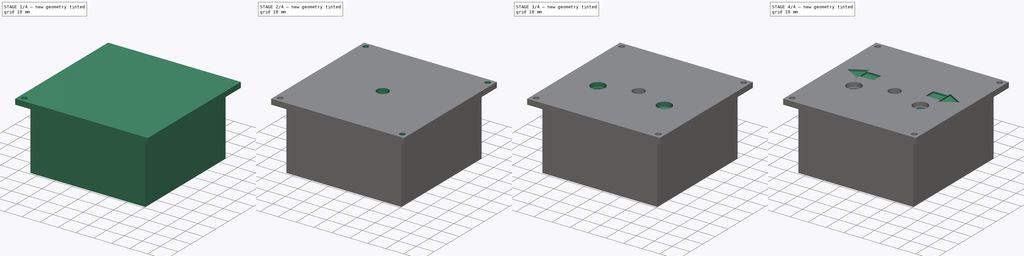
[diagram: build sequence overview — one tinted view per stage of 4, left to right]
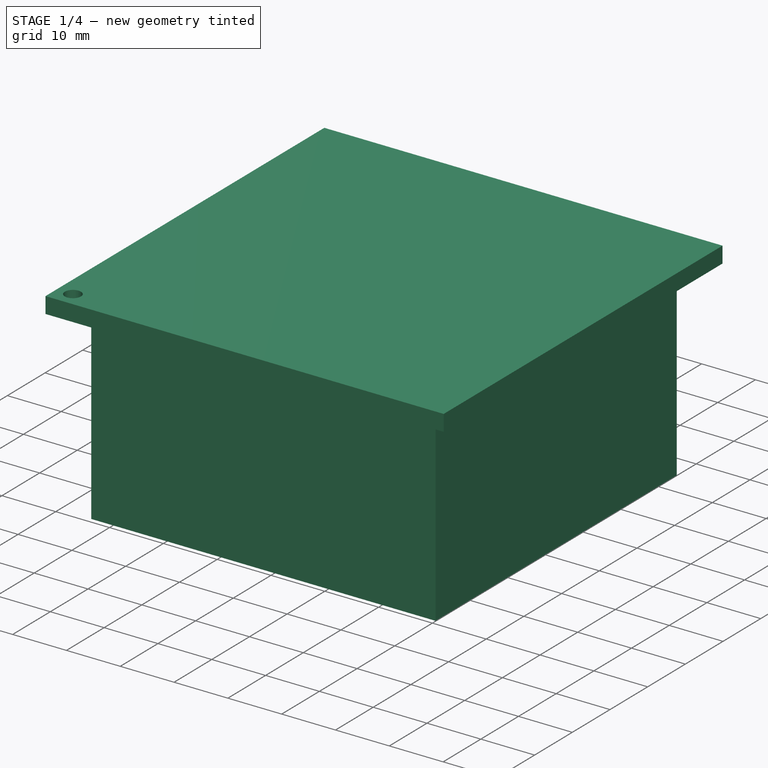
[diagram: stage 1 of 4 — iso view after this stage's code; geometry added in this stage tinted green]
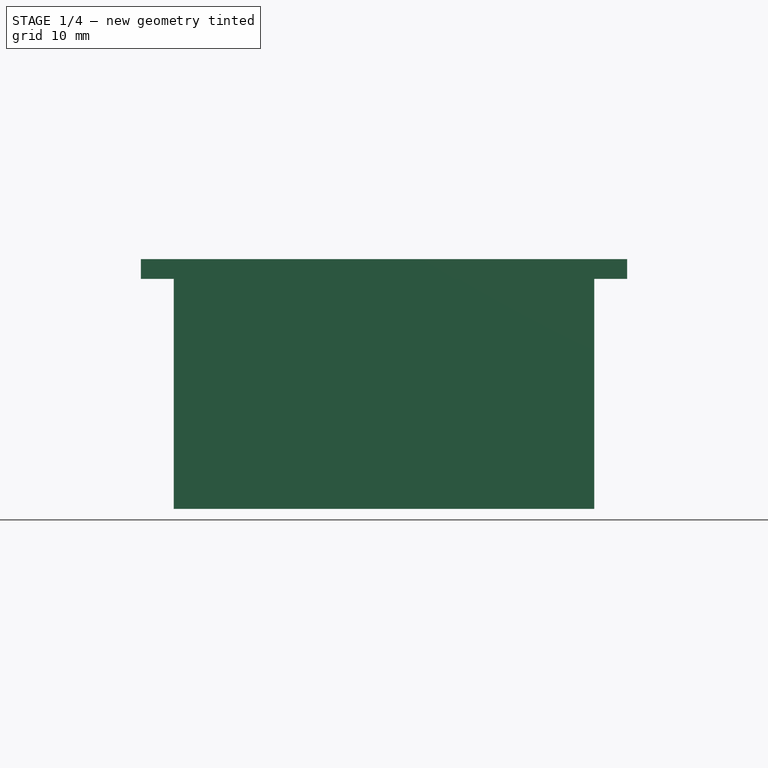
[diagram: stage 1 of 4 — front view after this stage's code; geometry added in this stage tinted green]
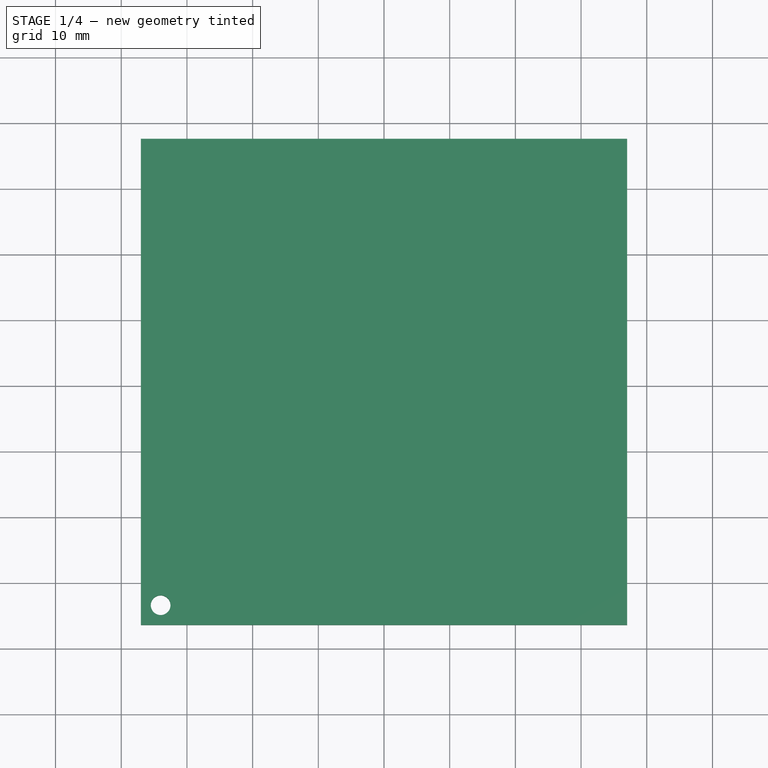
[diagram: stage 1 of 4 — top view after this stage's code; geometry added in this stage tinted green]
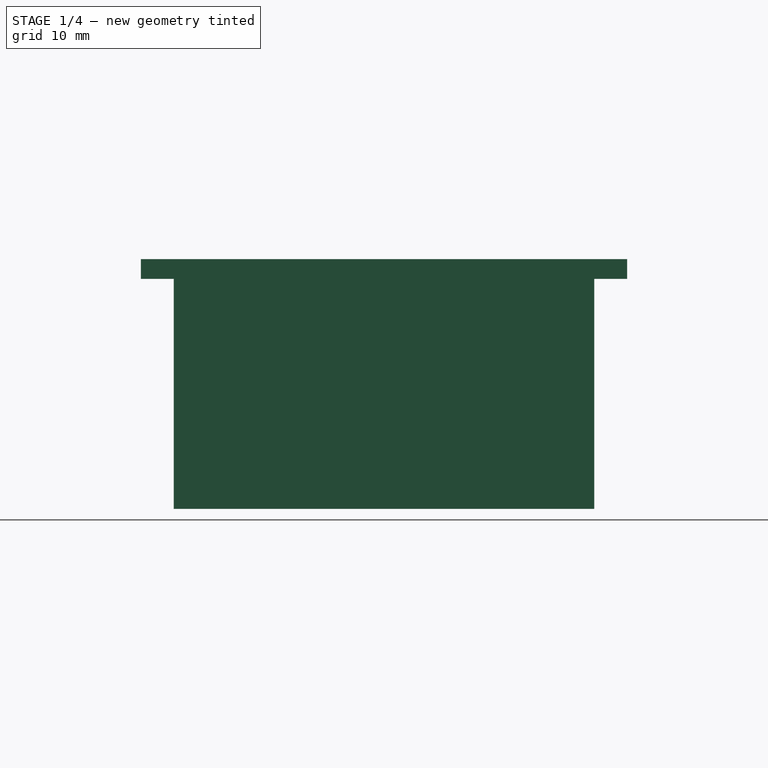
[diagram: stage 1 of 4 — right view after this stage's code; geometry added in this stage tinted green]
FCSTD DOCUMENT  (FreeCAD 0.20R29603 (Git))
Label: module-7
License: All rights reserved
LicenseURL: http://en.wikipedia.org/wiki/All_rights_reserved
objects: Sketcher::SketchObject×12, PartDesign::Pocket×7, PartDesign::Pad×5, PartDesign::Mirrored×3, PartDesign::MultiTransform×2, PartDesign::Body×1
note: 42 computed .brp shape members not serialized (recipe doc carries the construction recipe); baked Part::Feature solids carry a one-line shape summary decoded from their .brp

FEATURE [Sketcher::SketchObject] Sketch  label="FrontPanelBase"
  FullyConstrained = true
  MapMode = 5
  Support = -> [XY_Plane001]
  sketch-geometry (4):
    g0: LineSegment StartX=-37 StartY=37 StartZ=0 EndX=37 EndY=37 EndZ=0
    g1: LineSegment StartX=37 StartY=37 StartZ=0 EndX=37 EndY=-37 EndZ=0
    g2: LineSegment StartX=37 StartY=-37 StartZ=0 EndX=-37 EndY=-37 EndZ=0
    g3: LineSegment StartX=-37 StartY=-37 StartZ=0 EndX=-37 EndY=37 EndZ=0
  constraints (10):
    c: Coincident(g0,g1)
    c: Coincident(g1,g2)
    c: Coincident(g2,g3)
    c: Coincident(g3,g0)
    c: DistanceX(g0,g0) = 74
    c: DistanceY(g3,g3) = 74
    c: Vertical(g1)
    c: Horizontal(g2)
    c: Symmetric(g0,g0,g-2)
    c: Symmetric(g0,g2,g-1)
FEATURE [PartDesign::Pad] Pad  label="FrontPanelPad"
  Direction = (0,0,1)
  Length = 3
  Length2 = 10
  Profile = -> Sketch
  ReferenceAxis = -> Sketch [N_Axis]
  Type = 0
FEATURE [Sketcher::SketchObject] Sketch002  label="InnerWall"
  FullyConstrained = true
  MapMode = 5
  Placement = pos=(0,0,0) rot=(1,0,0;3.14159rad)
  Support = -> [Pad]
  sketch-geometry (12):
    g0: LineSegment StartX=-30 StartY=30 StartZ=0 EndX=30 EndY=30 EndZ=0
    g1: LineSegment StartX=30 StartY=30 StartZ=0 EndX=30 EndY=-30 EndZ=0
    g2: LineSegment StartX=30 StartY=-30 StartZ=0 EndX=-30 EndY=-30 EndZ=0
    g3: LineSegment StartX=-30 StartY=-30 StartZ=0 EndX=-30 EndY=30 EndZ=0
    g4: LineSegment StartX=-32 StartY=32 StartZ=0 EndX=32 EndY=32 EndZ=0
    g5: LineSegment StartX=32 StartY=32 StartZ=0 EndX=32 EndY=-32 EndZ=0
    g6: LineSegment StartX=32 StartY=-32 StartZ=0 EndX=-32 EndY=-32 EndZ=0
    g7: LineSegment StartX=-32 StartY=-32 StartZ=0 EndX=-32 EndY=32 EndZ=0
    g8: GeomPoint X=-30 Y=32 Z=0
    g9: GeomPoint X=-30 Y=-32 Z=0
    g10: GeomPoint X=-32 Y=-30 Z=0
    g11: GeomPoint X=32 Y=-30 Z=0
  constraints (31):
    c: Coincident(g0,g1)
    c: Coincident(g1,g2)
    c: Coincident(g2,g3)
    c: Coincident(g3,g0)
    c: Horizontal(g0)
    c: Horizontal(g2)
    c: Vertical(g1)
    c: Vertical(g3)
    c: DistanceX(g0,g0) = 60
    c: DistanceY(g2,g0) = 60
    c: Symmetric(g0,g1,g-1)
    c: Coincident(g4,g5)
    c: Coincident(g5,g6)
    c: Coincident(g6,g7)
    c: Coincident(g7,g4)
    c: Horizontal(g4)
    c: Horizontal(g6)
    c: Vertical(g5)
    c: Vertical(g7)
    c: PointOnObject(g8,g4)
    c: DistanceX(g0,g8) = 0
    c: DistanceY(g0,g8) = 2
    c: PointOnObject(g9,g6)
    c: DistanceX(g2,g9) = 0
    c: DistanceY(g9,g2) = 2
    c: PointOnObject(g10,g7)
    c: DistanceY(g2,g10) = 0
    c: DistanceX(g10,g2) = 2
    c: PointOnObject(g11,g5)
    c: DistanceY(g1,g11) = 0
    c: DistanceX(g1,g11) = 2
FEATURE [PartDesign::Pad] Pad001  label="InnerWallPad"
  BaseFeature = -> Pad
  Direction = (0,0,-1)
  Length = 35
  Length2 = 10
  Profile = -> Sketch002
  ReferenceAxis = -> Sketch002 [N_Axis]
  Type = 0
FEATURE [Sketcher::SketchObject] Sketch003  label="FrontPanelHoles"
  ExternalGeometry = -> [Pad001]
  FullyConstrained = true
  MapMode = 5
  Placement = pos=(0,0,0) rot=(1,0,0;3.14159rad)
  Support = -> [Pad001]
  sketch-geometry (3):
    g0: Circle CenterX=-34 CenterY=34 CenterZ=0 NormalX=0 NormalY=0 NormalZ=1 AngleXU=0 Radius=1.5
    g1: GeomPoint X=-37 Y=34 Z=0
    g2: GeomPoint X=-34 Y=37 Z=0
  constraints (7):
    c: Diameter(g0) = 3
    c: PointOnObject(g1,g-3)
    c: PointOnObject(g2,g-4)
    c: DistanceY(g1,g-4) = 3
    c: DistanceX(g-4,g2) = 3
    c: DistanceY(g0,g1) = 0
    c: DistanceX(g0,g2) = 0
FEATURE [PartDesign::Pocket] Pocket  label="FrontPanelPocket"
  BaseFeature = -> Pad001
  Direction = (0,0,1)
  Length = 5
  Length2 = 5
  Profile = -> Sketch003
  ReferenceAxis = -> Sketch003 [N_Axis]
  Type = 1
FEATURE [Sketcher::SketchObject] Sketch004  label="LidSupport"
  ExternalGeometry = -> [Pocket]
  FullyConstrained = true
  MapMode = 5
  Placement = pos=(0,0,0) rot=(1,0,0;3.14159rad)
  Support = -> [Pocket]
  sketch-geometry (3):
    g0: ArcOfCircle CenterX=-30 CenterY=30 CenterZ=0 NormalX=0 NormalY=0 NormalZ=1 AngleXU=0 Radius=8 StartAngle=4.71239 EndAngle=6.28319
    g1: LineSegment StartX=-30 StartY=30 StartZ=0 EndX=-30 EndY=22 EndZ=0
    g2: LineSegment StartX=-30 StartY=30 StartZ=0 EndX=-22 EndY=30 EndZ=0
  constraints (8):
    c: Coincident(g0,g-4)
    c: PointOnObject(g0,g-4)
    c: PointOnObject(g0,g-3)
    c: Radius(g0) = 8
    c: Coincident(g1,g0)
    c: Coincident(g1,g0)
    c: Coincident(g2,g0)
    c: Coincident(g2,g0)
FEATURE [PartDesign::Pad] Pad002  label="LidSupportPad"
  BaseFeature = -> Pocket
  Direction = (0,0,-1)
  Length = 32
  Length2 = 10
  Profile = -> Sketch004
  ReferenceAxis = -> Sketch004 [N_Axis]
  Type = 0
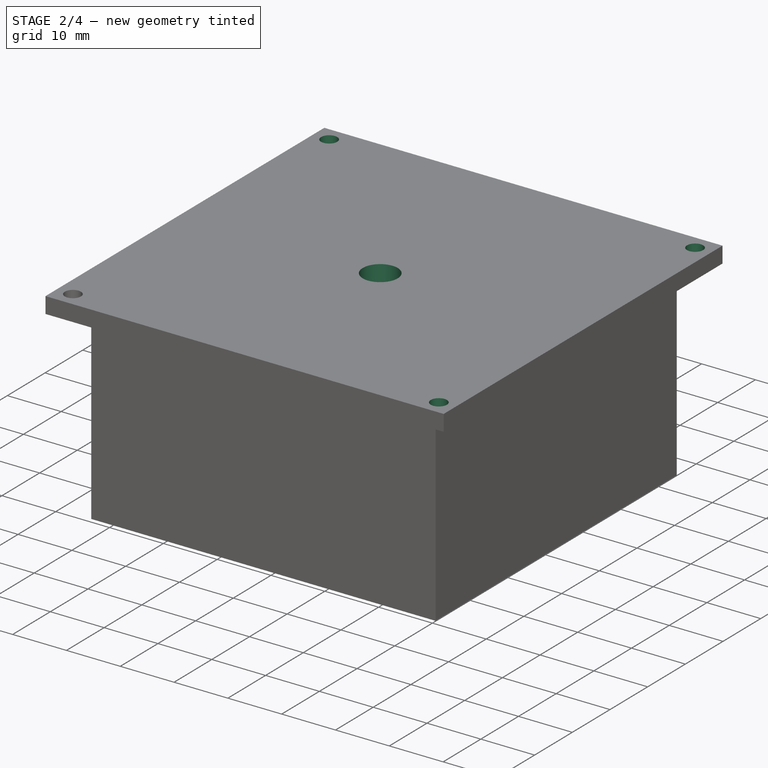
[diagram: stage 2 of 4 — iso view after this stage's code; geometry added in this stage tinted green]
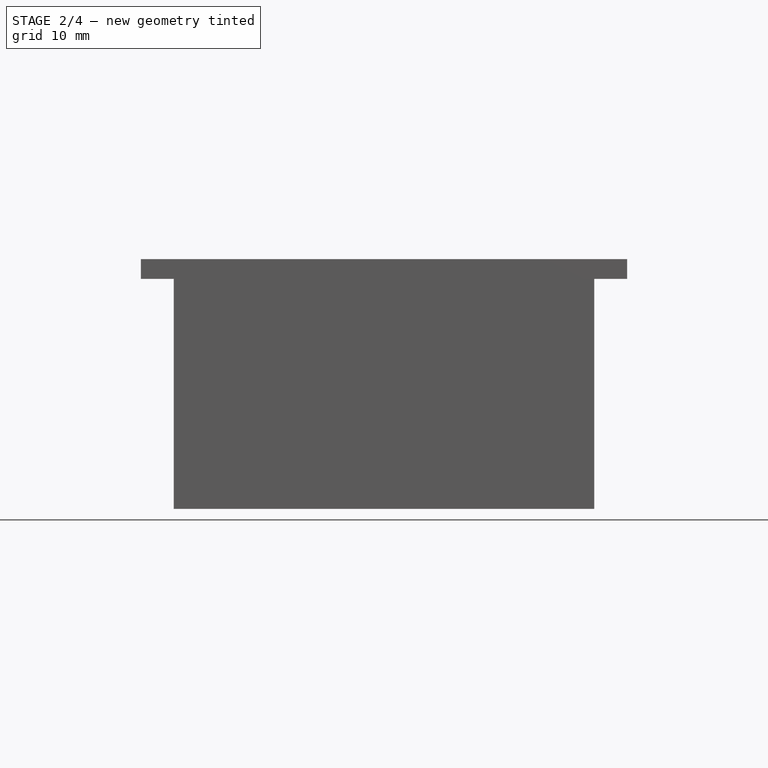
[diagram: stage 2 of 4 — front view after this stage's code; geometry added in this stage tinted green]
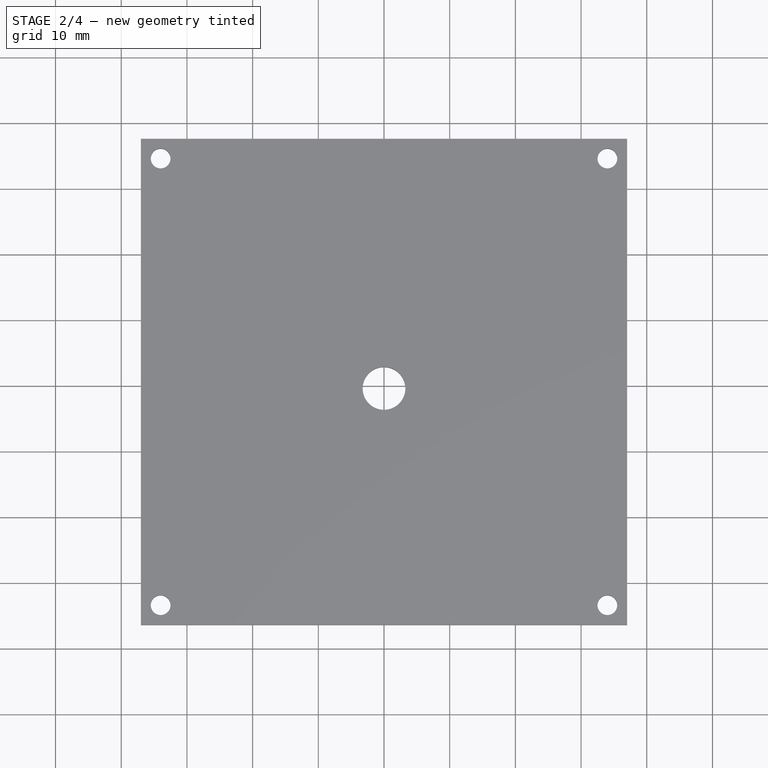
[diagram: stage 2 of 4 — top view after this stage's code; geometry added in this stage tinted green]
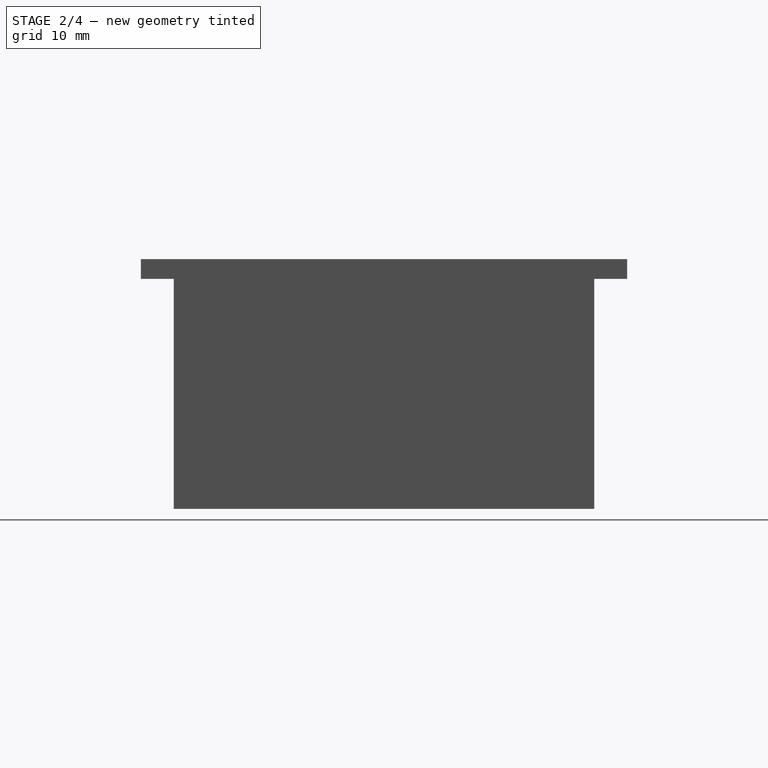
[diagram: stage 2 of 4 — right view after this stage's code; geometry added in this stage tinted green]
FEATURE [Sketcher::SketchObject] Sketch005  label="LidHole"
  ExternalGeometry = -> [Pad002]
  FullyConstrained = true
  MapMode = 5
  Placement = pos=(0,0,-32) rot=(1,0,0;3.14159rad)
  Support = -> [Pad002]
  sketch-geometry (3):
    g0: Circle CenterX=-27 CenterY=27 CenterZ=0 NormalX=0 NormalY=0 NormalZ=1 AngleXU=0 Radius=2.4
    g1: GeomPoint X=-30 Y=27 Z=0
    g2: GeomPoint X=-27 Y=30 Z=0
  constraints (7):
    c: Diameter(g0) = 4.8
    c: PointOnObject(g1,g-3)
    c: PointOnObject(g2,g-4)
    c: DistanceX(g-4,g2) = 3
    c: DistanceY(g1,g-4) = 3
    c: DistanceY(g1,g0) = 0
    c: DistanceX(g0,g2) = 0
FEATURE [PartDesign::Pocket] Pocket001  label="LidHolePocket"
  BaseFeature = -> Pad002
  Direction = (0,0,1)
  Length = 10
  Length2 = 5
  Profile = -> Sketch005
  ReferenceAxis = -> Sketch005 [N_Axis]
  Type = 0
FEATURE [PartDesign::Mirrored] Mirrored
  MirrorPlane = -> Sketch003 [V_Axis]
FEATURE [PartDesign::Mirrored] Mirrored001
  MirrorPlane = -> Sketch003 [H_Axis]
FEATURE [PartDesign::MultiTransform] MultiTransform
  BaseFeature = -> Pocket001
  Originals = -> [Pocket,Pad002,Pocket001]
  Transformations = -> [Mirrored,Mirrored001]
FEATURE [Sketcher::SketchObject] Sketch006
  FullyConstrained = true
  MapMode = 5
  Placement = pos=(0,0,3) rot=(0,0,1;0rad)
  Support = -> [MultiTransform]
  sketch-geometry (1):
    g0: Circle CenterX=0 CenterY=-1 CenterZ=0 NormalX=0 NormalY=0 NormalZ=1 AngleXU=0 Radius=3.25
  constraints (3):
    c: Diameter(g0) = 6.5
    c: Vertical(g0,g-1)
    c: DistanceY(g0,g-1) = 1
FEATURE [PartDesign::Pocket] Pocket002
  BaseFeature = -> MultiTransform
  Direction = (0,0,-1)
  Length = 5
  Length2 = 5
  Profile = -> Sketch006
  ReferenceAxis = -> Sketch006 [N_Axis]
  Type = 1
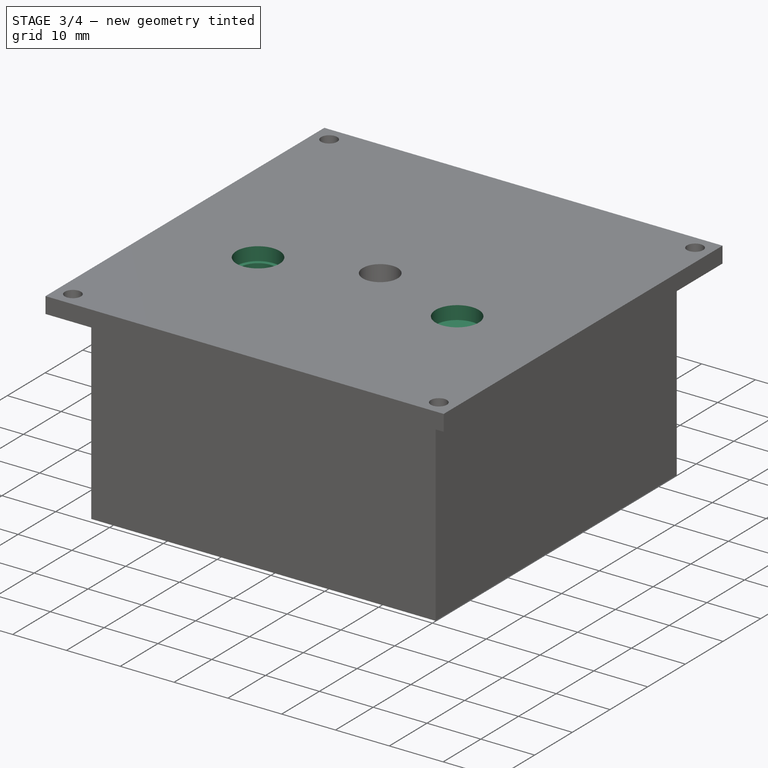
[diagram: stage 3 of 4 — iso view after this stage's code; geometry added in this stage tinted green]
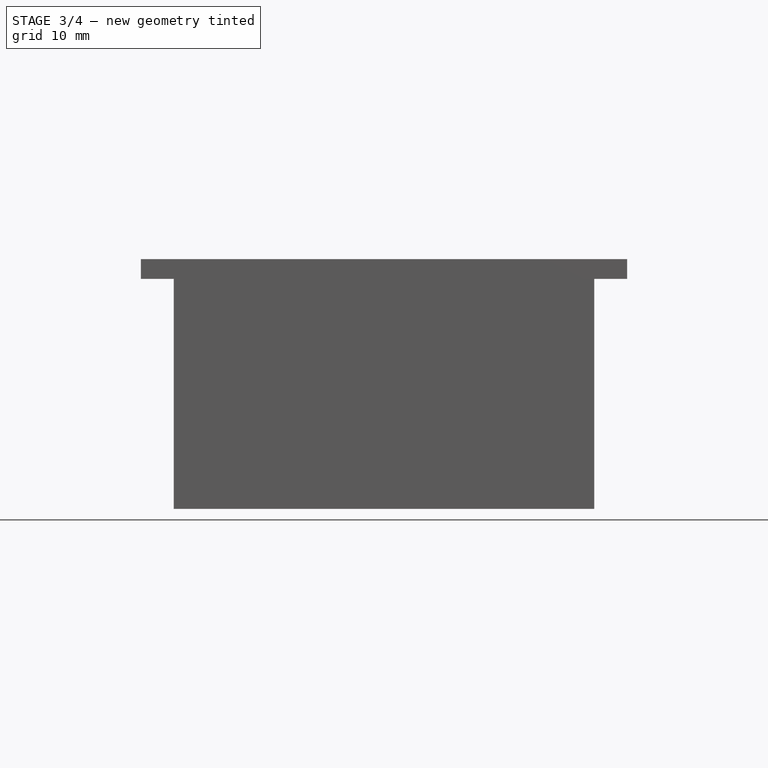
[diagram: stage 3 of 4 — front view after this stage's code; geometry added in this stage tinted green]
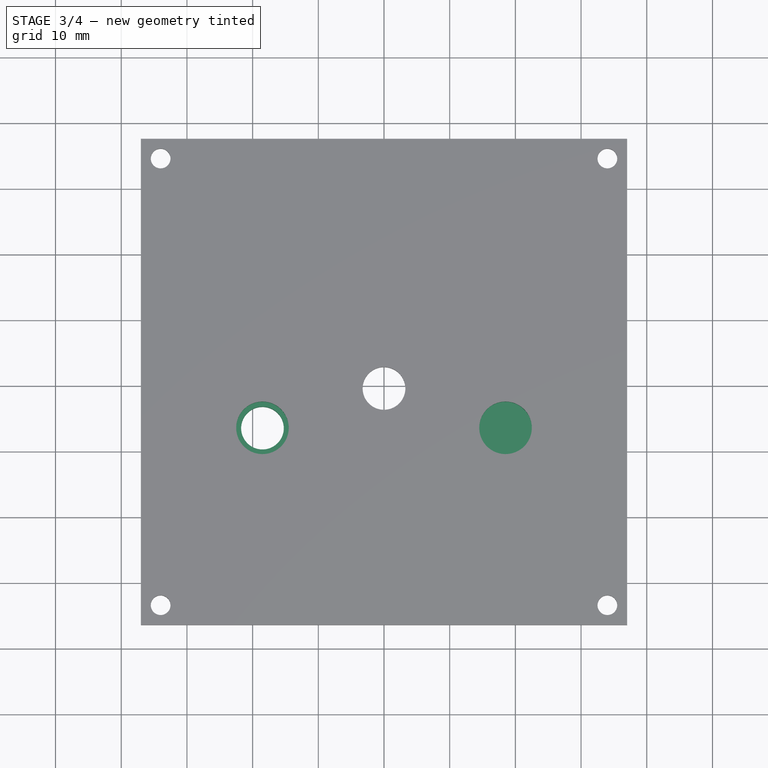
[diagram: stage 3 of 4 — top view after this stage's code; geometry added in this stage tinted green]
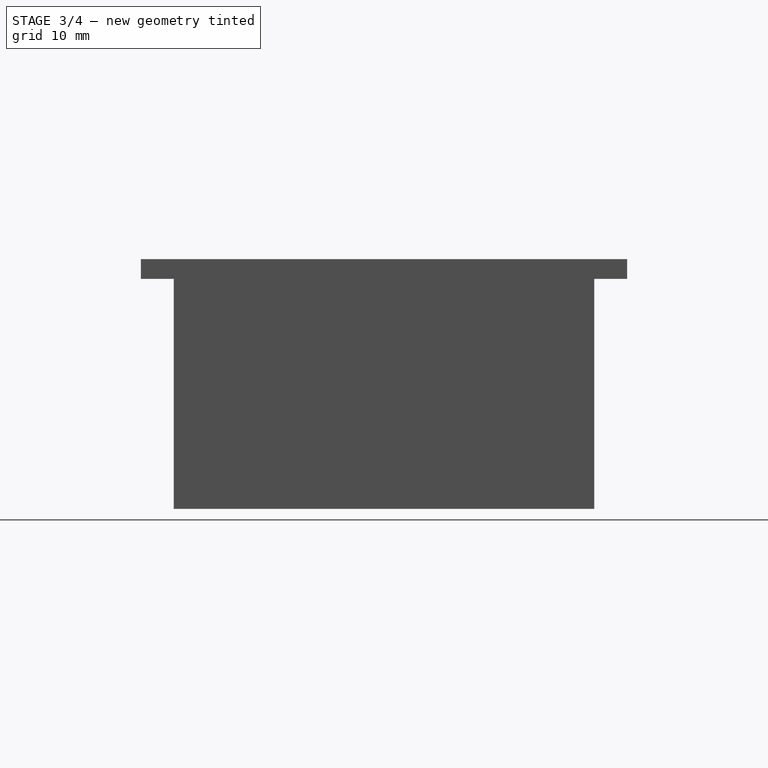
[diagram: stage 3 of 4 — right view after this stage's code; geometry added in this stage tinted green]
FEATURE [Sketcher::SketchObject] Sketch008
  ExternalGeometry = -> [Pocket002]
  FullyConstrained = true
  MapMode = 5
  Placement = pos=(0,0,3) rot=(0,0,1;0rad)
  Support = -> [Pocket002]
  sketch-geometry (4):
    g0: Circle CenterX=-18.5 CenterY=-7 CenterZ=0 NormalX=0 NormalY=0 NormalZ=1 AngleXU=0 Radius=4
    g1: Circle CenterX=18.5 CenterY=-7 CenterZ=0 NormalX=0 NormalY=0 NormalZ=1 AngleXU=0 Radius=4
    g2: GeomPoint X=-37 Y=-14 Z=0
    g3: GeomPoint X=37 Y=-14 Z=0
  constraints (8):
    c: Diameter(g0) = 8
    c: Equal(g0,g1)
    c: PointOnObject(g2,g-3)
    c: Symmetric(g-1,g2,g0)
    c: PointOnObject(g3,g-4)
    c: Symmetric(g-1,g3,g1)
    c: DistanceY(g0,g-1) = 7
    c: DistanceY(g1,g-1) = 7
FEATURE [PartDesign::Pocket] Pocket003
  BaseFeature = -> Pocket002
  Direction = (0,0,-1)
  Length = 2.5
  Length2 = 5
  Profile = -> Sketch008
  ReferenceAxis = -> Sketch008 [N_Axis]
  Type = 0
FEATURE [Sketcher::SketchObject] Sketch009
  ExternalGeometry = -> [Pocket003]
  FullyConstrained = true
  MapMode = 5
  Placement = pos=(0,0,0) rot=(1,0,0;3.14159rad)
  Support = -> [Pocket003]
  sketch-geometry (2):
    g0: Circle CenterX=18.5 CenterY=7 CenterZ=0 NormalX=0 NormalY=0 NormalZ=1 AngleXU=0 Radius=6
    g1: Circle CenterX=-18.5 CenterY=7 CenterZ=0 NormalX=0 NormalY=0 NormalZ=1 AngleXU=0 Radius=6
  constraints (4):
    c: Diameter(g0) = 12
    c: Equal(g0,g1)
    c: Coincident(g1,g-3)
    c: Coincident(g0,g-4)
FEATURE [PartDesign::Pad] Pad003
  BaseFeature = -> Pocket003
  Direction = (0,0,-1)
  Length = 3
  Length2 = 10
  Profile = -> Sketch009
  ReferenceAxis = -> Sketch009 [N_Axis]
  Type = 0
FEATURE [Sketcher::SketchObject] Sketch010
  ExternalGeometry = -> [Pad003]
  FullyConstrained = true
  MapMode = 5
  Placement = pos=(0,0,-3) rot=(1,0,0;3.14159rad)
  Support = -> [Pad003]
  sketch-geometry (1):
    g0: Circle CenterX=-18.5 CenterY=7 CenterZ=0 NormalX=0 NormalY=0 NormalZ=1 AngleXU=0 Radius=3.25
  constraints (2):
    c: Diameter(g0) = 6.5
    c: Coincident(g0,g-3)
FEATURE [PartDesign::Pocket] Pocket004
  BaseFeature = -> Pad003
  Direction = (0,0,1)
  Length = 5
  Length2 = 5
  Profile = -> Sketch010
  ReferenceAxis = -> Sketch010 [N_Axis]
  Type = 1
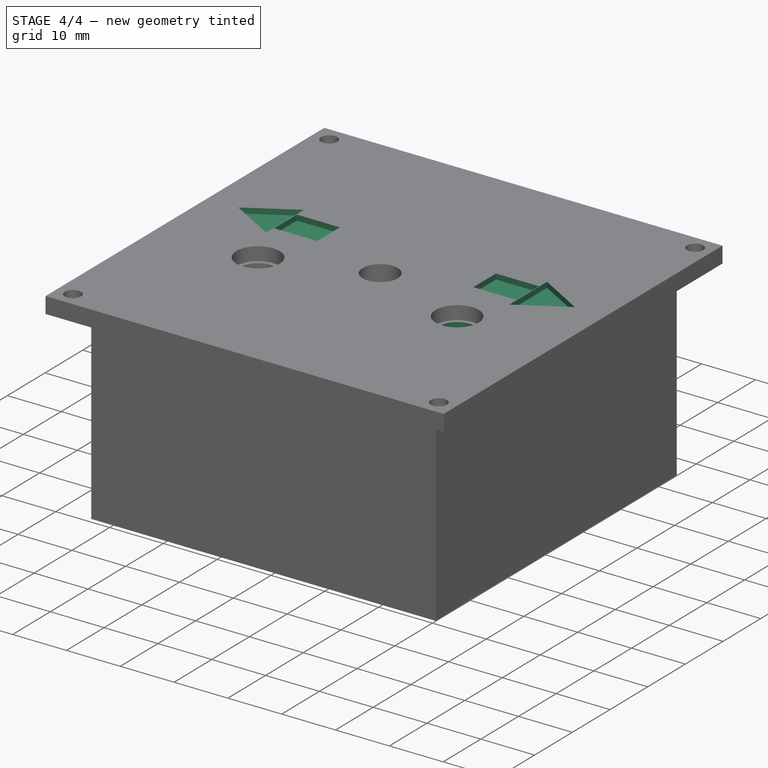
[diagram: stage 4 of 4 — iso view after this stage's code; geometry added in this stage tinted green]
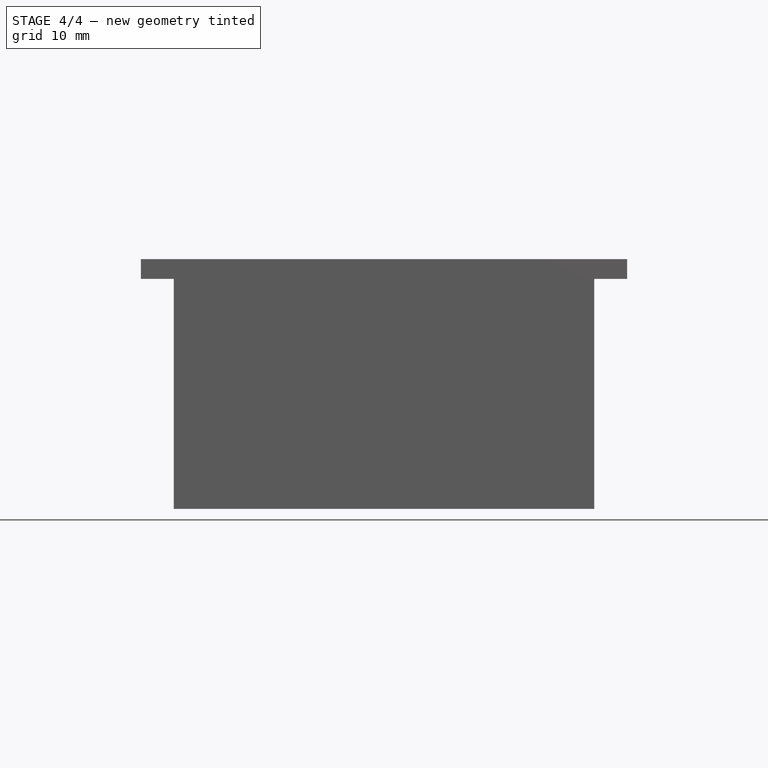
[diagram: stage 4 of 4 — front view after this stage's code; geometry added in this stage tinted green]
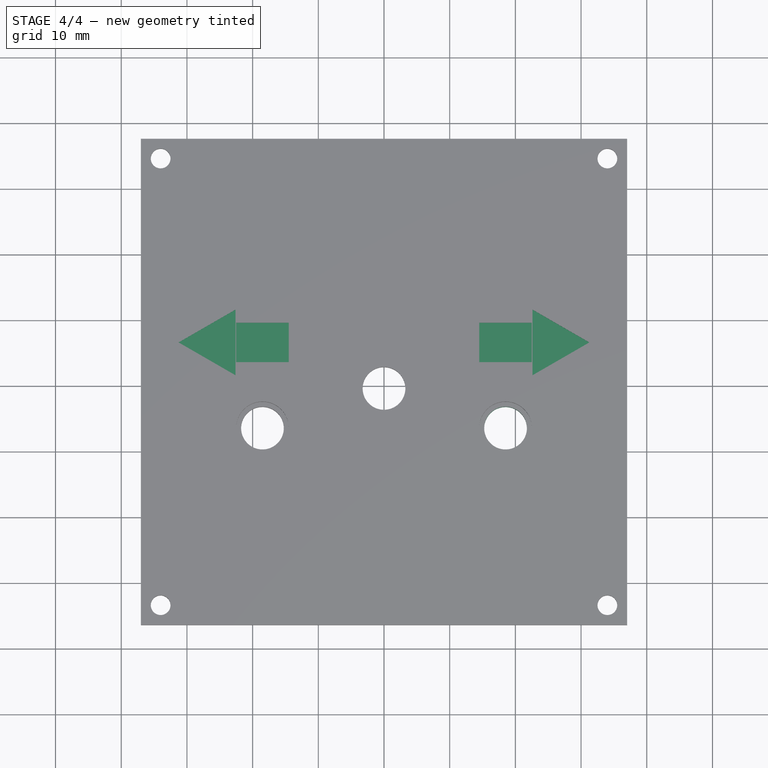
[diagram: stage 4 of 4 — top view after this stage's code; geometry added in this stage tinted green]
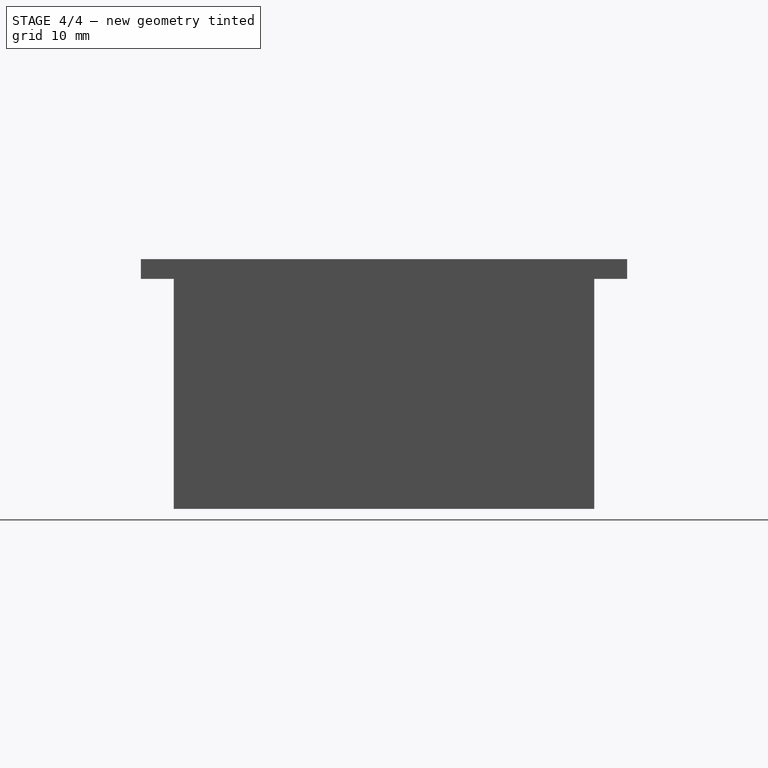
[diagram: stage 4 of 4 — right view after this stage's code; geometry added in this stage tinted green]
FEATURE [Sketcher::SketchObject] Sketch011
  ExternalGeometry = -> [Pocket004]
  FullyConstrained = true
  MapMode = 5
  Placement = pos=(0,0,3) rot=(0,0,1;0rad)
  Support = -> [Pocket004]
  sketch-geometry (1):
    g0: Circle CenterX=18.5 CenterY=-7 CenterZ=0 NormalX=0 NormalY=0 NormalZ=1 AngleXU=0 Radius=3.25
  constraints (2):
    c: Diameter(g0) = 6.5
    c: Coincident(g0,g-3)
FEATURE [PartDesign::Pocket] Pocket005
  BaseFeature = -> Pocket004
  Direction = (0,0,-1)
  Length = 5
  Length2 = 5
  Profile = -> Sketch011
  ReferenceAxis = -> Sketch011 [N_Axis]
  Type = 1
FEATURE [Sketcher::SketchObject] Sketch012
  ExternalGeometry = -> [Pocket005]
  FullyConstrained = true
  MapMode = 5
  Placement = pos=(0,0,3) rot=(0,0,1;0rad)
  Support = -> [Pocket005]
  sketch-geometry (10):
    g0: LineSegment StartX=-22.5 StartY=9 StartZ=0 EndX=-14.5 EndY=9 EndZ=0
    g1: LineSegment StartX=-14.5 StartY=9 StartZ=0 EndX=-14.5 EndY=3 EndZ=0
    g2: LineSegment StartX=-14.5 StartY=3 StartZ=0 EndX=-22.5 EndY=3 EndZ=0
    g3: LineSegment StartX=-22.5 StartY=3 StartZ=0 EndX=-22.5 EndY=9 EndZ=0
    g4: GeomPoint X=-22.5 Y=-7 Z=0
    g5: LineSegment StartX=-22.6 StartY=1 StartZ=0 EndX=-22.6 EndY=11 EndZ=0
    g6: LineSegment StartX=-22.6 StartY=11 StartZ=0 EndX=-31.2603 EndY=6 EndZ=0
    g7: LineSegment StartX=-31.2603 StartY=6 StartZ=0 EndX=-22.6 EndY=1 EndZ=0
    g8: Circle CenterX=-25.4868 CenterY=6 CenterZ=0 NormalX=0 NormalY=0 NormalZ=1 AngleXU=0 Radius=5.7735
    g9: GeomPoint X=-22.5 Y=6 Z=0
  constraints (27):
    c: Coincident(g0,g1)
    c: Coincident(g1,g2)
    c: Coincident(g2,g3)
    c: Coincident(g3,g0)
    c: Horizontal(g0)
    c: Horizontal(g2)
    c: Vertical(g1)
    c: Vertical(g3)
    c: DistanceX(g2,g1) = 8
    c: DistanceY(g1,g0) = 6
    c: Vertical(g2,g4)
    c: DistanceY(g4,g2) = 10
    c: Coincident(g5,g6)
    c: Coincident(g6,g7)
    c: Coincident(g7,g5)
    c: Equal(g5,g6)
    c: Equal(g5,g7)
    c: PointOnObject(g5,g8)
    c: PointOnObject(g6,g8)
    c: PointOnObject(g7,g8)
    c: Vertical(g5,g5)
    c: Horizontal(g9,g6)
    c: Symmetric(g0,g2,g9)
    c: DistanceY(g5,g5) = 10
    c: DistanceX(g5,g2) = 0.1
    c: PointOnObject(g4,g-3)
    c: Horizontal(g4,g-3)
FEATURE [PartDesign::Pocket] Pocket006
  BaseFeature = -> Pocket005
  Direction = (0,0,-1)
  Length = 1
  Length2 = 5
  Profile = -> Sketch012
  ReferenceAxis = -> Sketch012 [N_Axis]
  Type = 0
FEATURE [PartDesign::Mirrored] Mirrored002
  MirrorPlane = -> Sketch012 [V_Axis]
FEATURE [PartDesign::MultiTransform] MultiTransform001
  BaseFeature = -> Pocket006
  Originals = -> [Pocket006]
  Transformations = -> [Mirrored002]
FEATURE [Sketcher::SketchObject] Sketch013
  ExternalGeometry = -> [MultiTransform001]
  FullyConstrained = true
  MapMode = 5
  Placement = pos=(0,0,0) rot=(1,0,0;3.14159rad)
  Support = -> [MultiTransform001]
  sketch-geometry (8):
    g0: LineSegment StartX=-30 StartY=-17 StartZ=0 EndX=-25 EndY=-17 EndZ=0
    g1: LineSegment StartX=-25 StartY=-17 StartZ=0 EndX=-25 EndY=-22 EndZ=0
    g2: LineSegment StartX=-25 StartY=-22 StartZ=0 EndX=-30 EndY=-22 EndZ=0
    g3: LineSegment StartX=-30 StartY=-22 StartZ=0 EndX=-30 EndY=-17 EndZ=0
    g4: LineSegment StartX=15 StartY=-3.6e-15 StartZ=0 EndX=20 EndY=-3.6e-15 EndZ=0
    g5: LineSegment StartX=20 StartY=-3.6e-15 StartZ=0 EndX=20 EndY=-5 EndZ=0
    g6: LineSegment StartX=20 StartY=-5 StartZ=0 EndX=15 EndY=-5 EndZ=0
    g7: LineSegment StartX=15 StartY=-5 StartZ=0 EndX=15 EndY=-3.6e-15 EndZ=0
  constraints (23):
    c: Coincident(g0,g1)
    c: Coincident(g1,g2)
    c: Coincident(g2,g3)
    c: Coincident(g3,g0)
    c: Horizontal(g0)
    c: Horizontal(g2)
    c: Vertical(g1)
    c: Vertical(g3)
    c: Coincident(g2,g-3)
    c: DistanceY(g1,g0) = 5
    c: DistanceX(g0,g0) = 5
    c: Coincident(g4,g5)
    c: Coincident(g5,g6)
    c: Coincident(g6,g7)
    c: Coincident(g7,g4)
    c: Horizontal(g4)
    c: Horizontal(g6)
    c: Vertical(g5)
    c: Vertical(g7)
    c: DistanceY(g0,g6) = 12
    c: DistanceY(g6,g4) = 5
    c: DistanceX(g4,g4) = 5
    c: DistanceX(g0,g6) = 40
FEATURE [PartDesign::Pad] Pad004
  BaseFeature = -> MultiTransform001
  Direction = (0,0,-1)
  Length = 16
  Length2 = 10
  Profile = -> Sketch013
  ReferenceAxis = -> Sketch013 [N_Axis]
  Type = 0
FEATURE [PartDesign::Body] Body001
  Group = -> [Sketch,Pad,Sketch002,Pad001,Sketch003,Pocket,Sketch004,Pad002,Sketch005,Pocket001,MultiTransform,Mirrored,Mirrored001,Sketch006,Pocket002,Sketch008,Pocket003,Sketch009,Pad003,Sketch010,Pocket004,Sketch011,Pocket005,Sketch012,Pocket006,MultiTransform001,Mirrored002,Sketch013,Pad004]
  Origin = -> Origin001
  Tip = -> Pad004
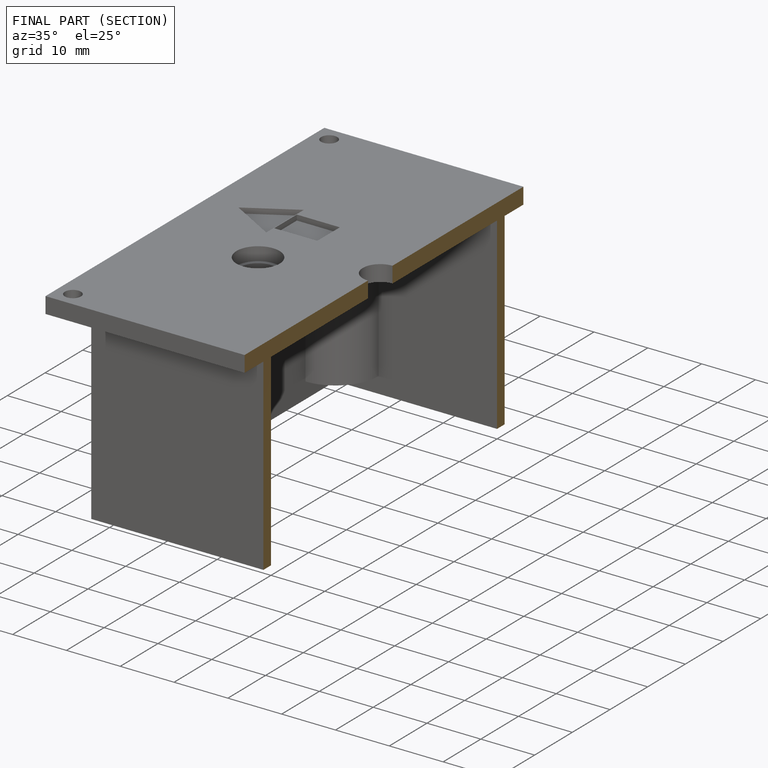
[diagram: finished part — half-section view (interior)]
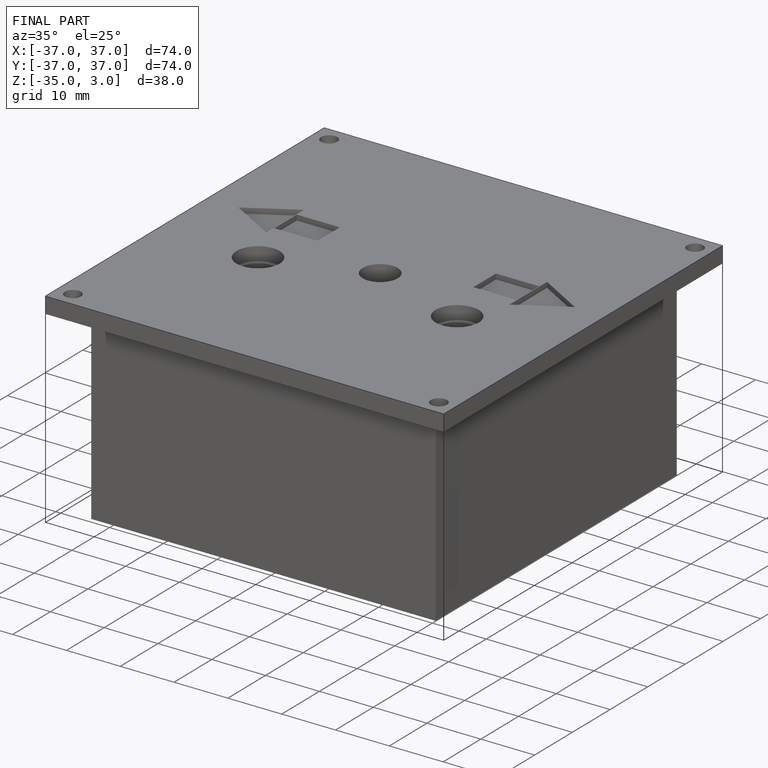
[diagram: finished part — iso view with bounding-box wireframe]
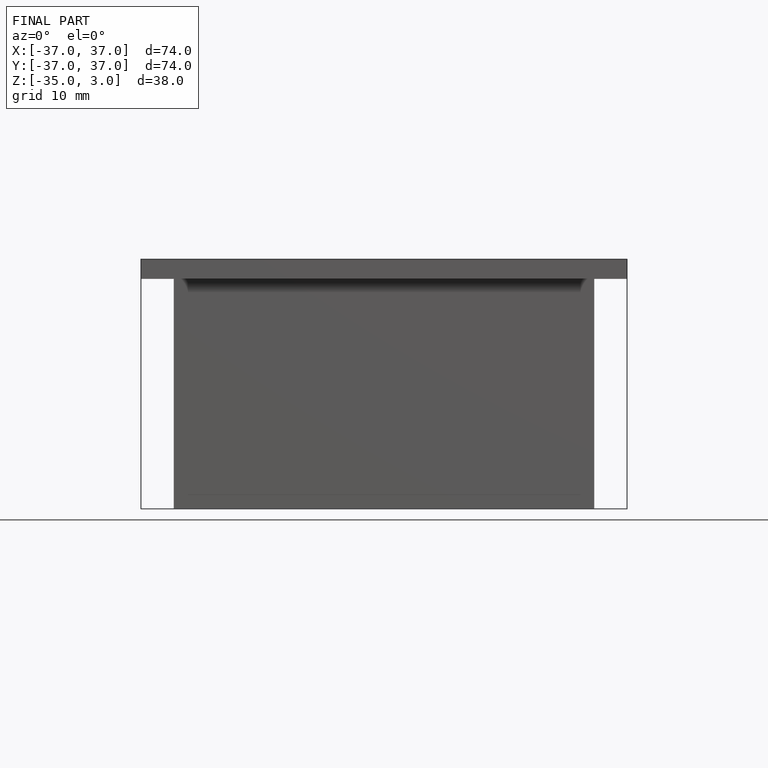
[diagram: finished part — front view with bounding-box wireframe]
